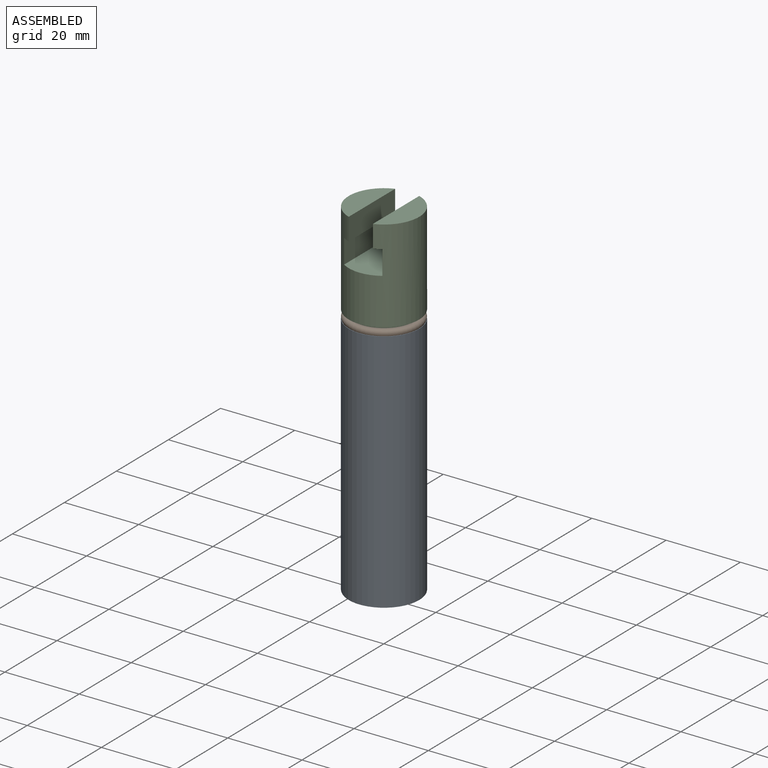
[diagram: assembled view]
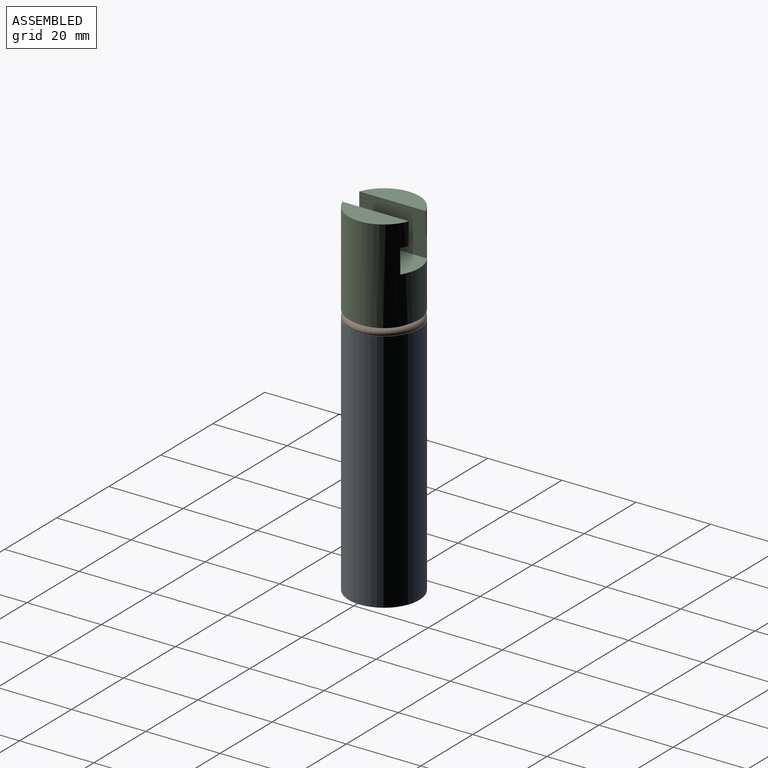
[diagram: assembled view, second angle]
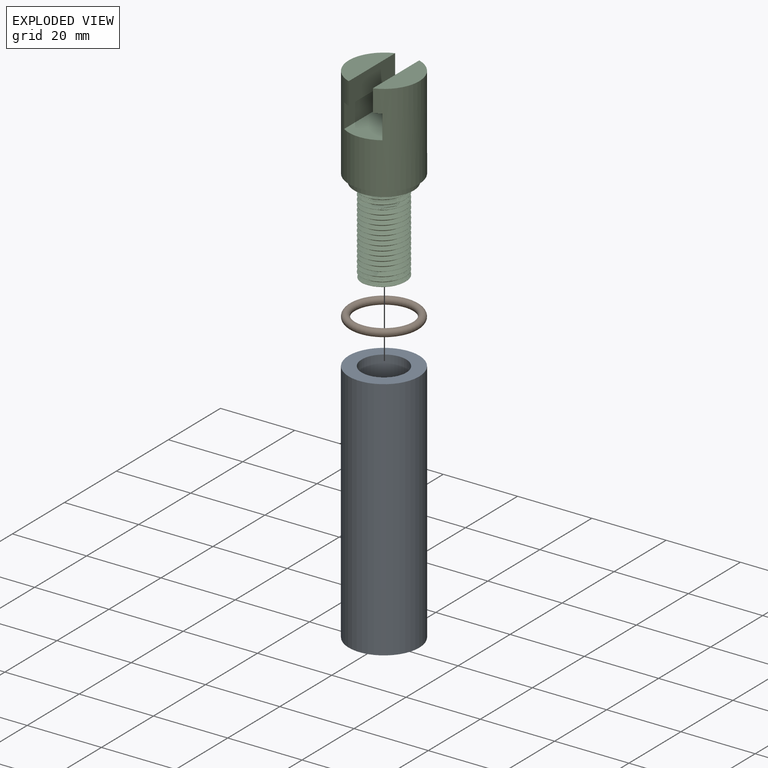
[diagram: exploded view]
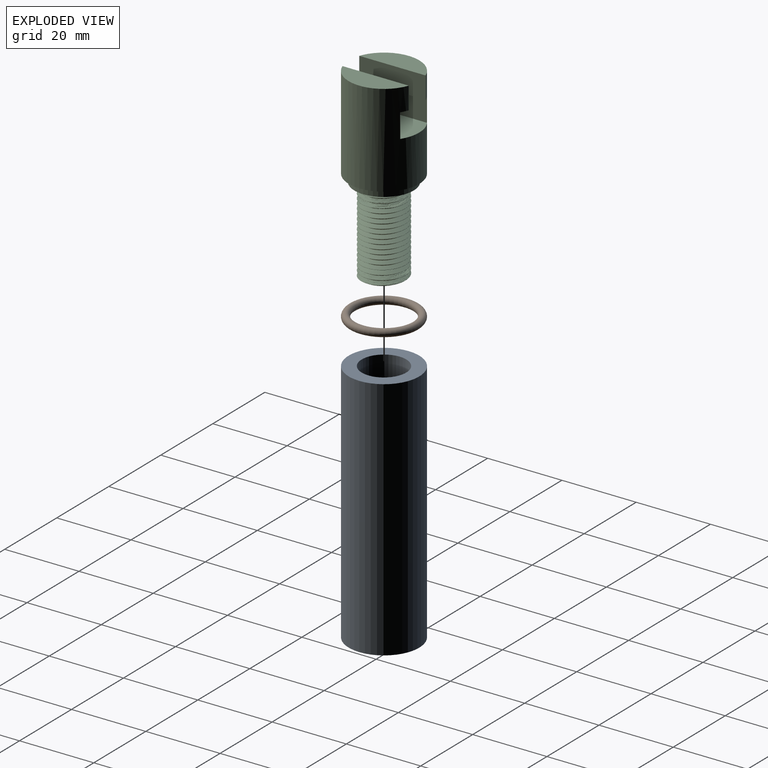
[diagram: exploded view, second angle]
ASSEMBLY  parts=3 mates=2
PART A: 5 faces, bbox 19x19x66 mm
  f0: cylinder r=9.5mm len=66mm, axis (0,0,1), area 3939.6mm2, adj f1,f2
  f1: plane 19x19mm, normal (0,0,-1), area 283.5mm2, adj f0
  f2: plane 19x19mm, normal (0,0,1), area 170.4mm2, adj f0,f3
  f3: cylinder r=6mm len=30mm, axis (0,0,1), area 1131mm2, adj f2,f4
  f4: plane 12x12mm, normal (0,0,1), area 113.1mm2, adj f3
PART B: 1 faces, bbox 20.6x20.6x2 mm
  f0: torus R=8.5mm, axis (0,0,1), area 335.6mm2
PART C: 22 faces, bbox 19x19x50.6 mm
  f0: plane 17.85x6.25mm, normal (0,0,1), area 81.2mm2, adj f1,f2,f11
  f1: cylinder r=9.5mm len=25mm, axis (0,0,-1), area 1258.4mm2, adj f0,f2,f3,f4,f5,f6,f7,f8
  f2: cylinder r=9.5mm len=6mm, axis (0,0,-1), area 12.8mm2, adj f0,f1,f6,f11
  f3: plane 17.85x6.25mm, normal (0,0,1), area 81.2mm2, adj f1,f10
  f4: plane 19x19mm, normal (0,0,-1), area 82.5mm2, adj f1,f13
  f5: plane 17.85x1.9mm, normal (0,0,-1), area 32.3mm2, adj f1,f9,f10
  f6: plane 17.85x1.9mm, normal (0,0,-1), area 32.3mm2, adj f1,f2,f7,f11
  f7: plane 15.97x6.5mm, normal (1,0,0), area 103.8mm2, adj f1,f6,f8
  f8: plane 19x10.3mm, normal (0,0,1), area 185.6mm2, adj f1,f7,f9
  f9: plane 15.97x6.5mm, normal (-1,0,0), area 103.8mm2, adj f1,f5,f8
  f10: plane 17.85x6mm, normal (-1,0,0), area 107.1mm2, adj f1,f3,f5
  f11: plane 17.85x6mm, normal (1,0,0), area 107.1mm2, adj f0,f1,f2,f6
  f12: cylinder r=5.06mm len=10.06mm, axis (0,0,1), area 2.2mm2, adj f14,f18,f20,f21
  f13: cylinder r=8mm len=16mm, axis (0,0,1), area 100.5mm2, adj f4,f14
  f14: plane 16x16mm, normal (0,0,-1), area 120.5mm2, adj f12,f13,f19
  f15: plane 11.1x11.1mm, normal (0,0,-1), area 95.4mm2, adj f16,f20,f21
  f16: cylinder r=6mm len=22mm, axis (0,0,1), area 158.9mm2, adj f15,f17,f20,f21
  f17: plane 11.03x11.01mm, normal (0,0,1), area 15mm2, adj f16,f19,f20,f21
  f18: plane 0.12x0.09mm, normal (0.87,-0.5,0), area 0mm2, adj f12,f20,f21
  f19: cylinder r=5.06mm len=10.13mm, axis (0,0,1), area 28.9mm2, adj f14,f17,f20,f21
  f20: bspline ~24.98x13.86mm, area 735.3mm2, adj f12,f15,f16,f17,f18,f19,f21
  f21: bspline ~24.35x13.86mm, area 735.1mm2, adj f12,f15,f16,f17,f18,f19,f20
PLACE A t=(17.83,14.62,30.82)mm
PLACE B rot(axis=(-0.31,0.95,0.07),0deg) t=(17.83,14.62,30.3)mm
PLACE C rot(axis=(-0.31,0.95,0.07),0deg) t=(17.83,14.62,33.07)mm
MATE slider C.f1 <-> B.f0  axis (0,0,-1) through (17.83,14.62,33.07)mm
MATE cylindrical A.f0 <-> C.f1  axis (0,0,1) through (17.83,14.62,30.82)mm
